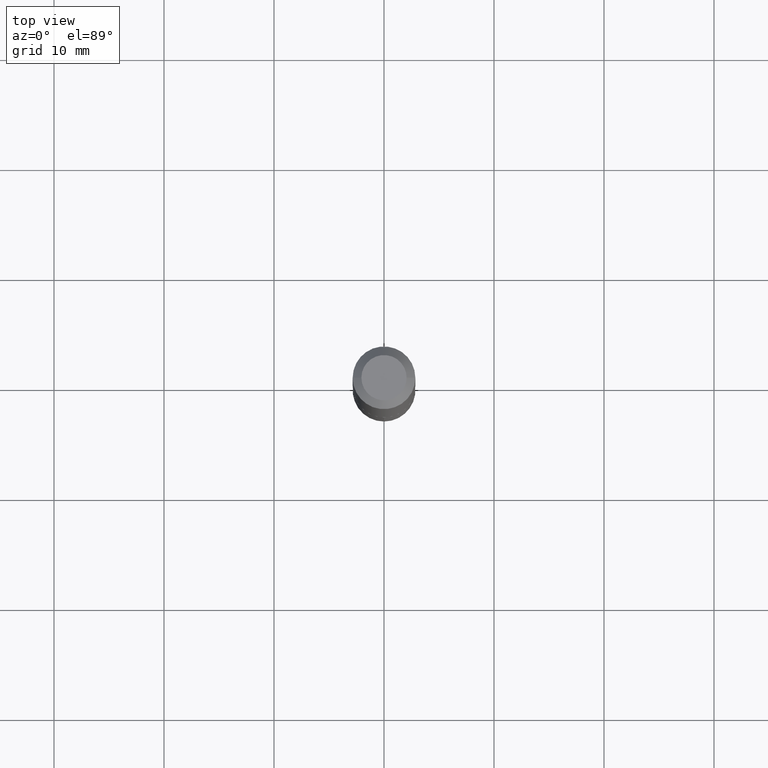
[diagram: clean part render]
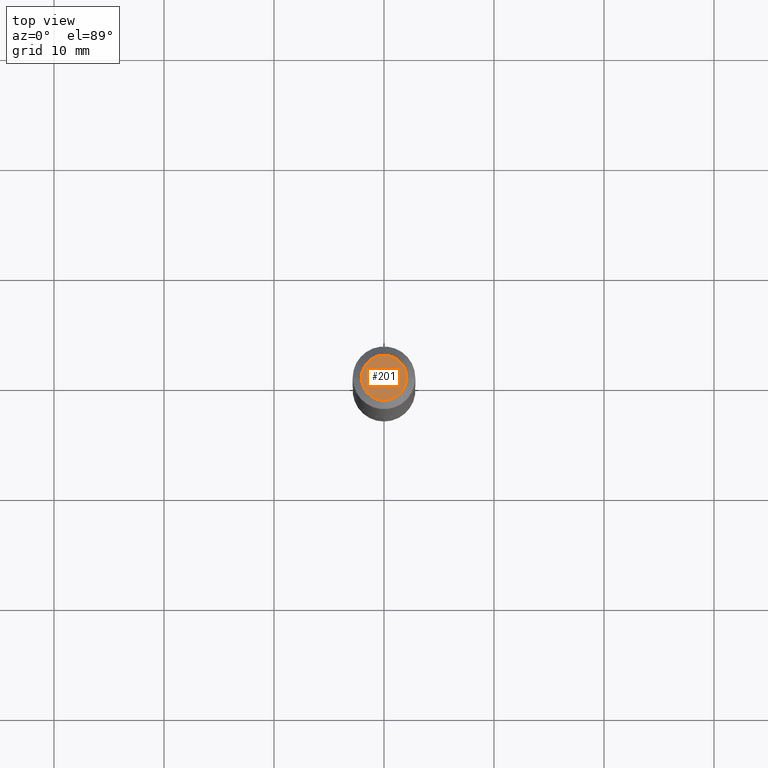
[diagram: same view with one face highlighted and labeled with its STEP entity id]
A machine part, top view. The second image highlights one B-rep face of the part: STEP entity #201.
In plain terms, the highlighted planar face has unit normal (0, -0, -1).
Its self-contained STEP definition (entity closure, byte-faithful):
#11 = DIRECTION ( 'NONE',  ( -2.445468806185136597E-29, 3.491481338843145583E-15, 1.000000000000000000 ) ) ;
#58 = EDGE_CURVE ( 'NONE', #291, #170, #362, .T. ) ;
#67 = DIRECTION ( 'NONE',  ( 1.000000000000000000, -6.982962677686265922E-15, 4.876172822216040700E-29 ) ) ;
#68 = DIRECTION ( 'NONE',  ( -1.000000000000000000, 6.982962677686265922E-15, -4.876176775795935793E-29 ) ) ;
#95 = AXIS2_PLACEMENT_3D ( 'NONE', #216, #336, #68 ) ;
#114 = ORIENTED_EDGE ( 'NONE', *, *, #223, .T. ) ;
#164 = PLANE ( 'NONE',  #95 ) ;
#166 = CARTESIAN_POINT ( 'NONE',  ( -0.08094999999999999418, 6.198252246781266344E-16, 2.388061258295906424E-19 ) ) ;
#167 = CARTESIAN_POINT ( 'NONE',  ( -5.839929314523198503E-48, 8.337871319499114970E-34, 2.388061258337343288E-19 ) ) ;
#170 = VERTEX_POINT ( 'NONE', #302 ) ;
#184 = DIRECTION ( 'NONE',  ( -2.445468806185136597E-29, 3.491481338843145583E-15, 1.000000000000000000 ) ) ;
#195 = ORIENTED_EDGE ( 'NONE', *, *, #58, .T. ) ;
#201 = ADVANCED_FACE ( 'NONE', ( #275 ), #164, .F. ) ;
#216 = CARTESIAN_POINT ( 'NONE',  ( -2.919964657261599251E-48, 4.168935659749557485E-34, 1.194030629168671644E-19 ) ) ;
#223 = EDGE_CURVE ( 'NONE', #170, #291, #312, .T. ) ;
#244 = AXIS2_PLACEMENT_3D ( 'NONE', #331, #184, #67 ) ;
#272 = AXIS2_PLACEMENT_3D ( 'NONE', #167, #11, #282 ) ;
#275 = FACE_OUTER_BOUND ( 'NONE', #288, .T. ) ;
#282 = DIRECTION ( 'NONE',  ( 1.000000000000000000, -6.982962677686265922E-15, 4.876172822216040700E-29 ) ) ;
#288 = EDGE_LOOP ( 'NONE', ( #195, #114 ) ) ;
#291 = VERTEX_POINT ( 'NONE', #166 ) ;
#302 = CARTESIAN_POINT ( 'NONE',  ( 0.08094999999999999418, -7.171069900542102065E-16, 2.388061258382177493E-19 ) ) ;
#312 = CIRCLE ( 'NONE', #272, 0.08094999999999999418 ) ;
#331 = CARTESIAN_POINT ( 'NONE',  ( -5.839929314523198503E-48, 8.337871319499114970E-34, 2.388061258337343288E-19 ) ) ;
#336 = DIRECTION ( 'NONE',  ( 2.438088387897960049E-29, -3.491481338843145188E-15, -1.000000000000000000 ) ) ;
#362 = CIRCLE ( 'NONE', #244, 0.08094999999999999418 ) ;